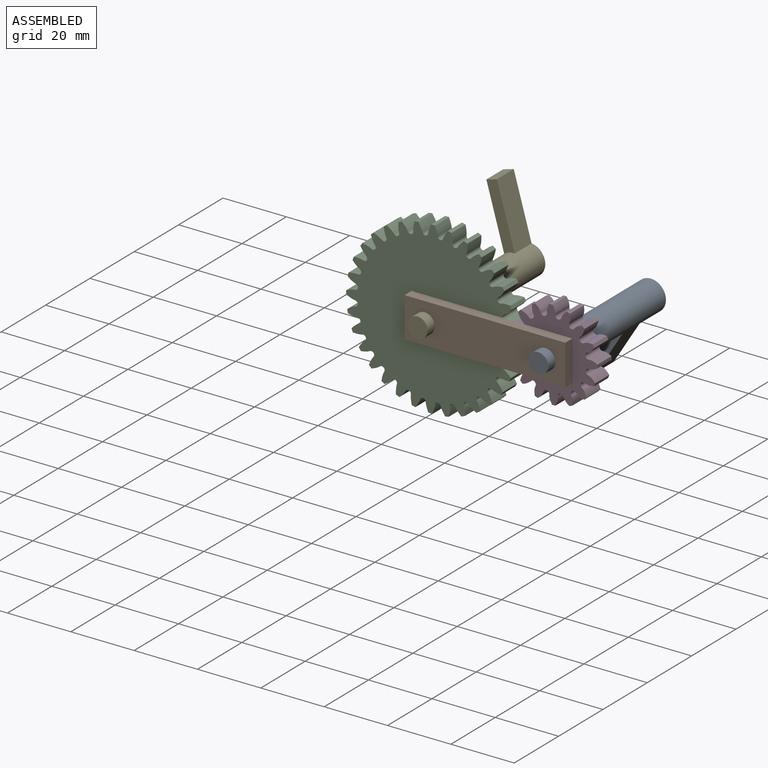
[diagram: assembled view]
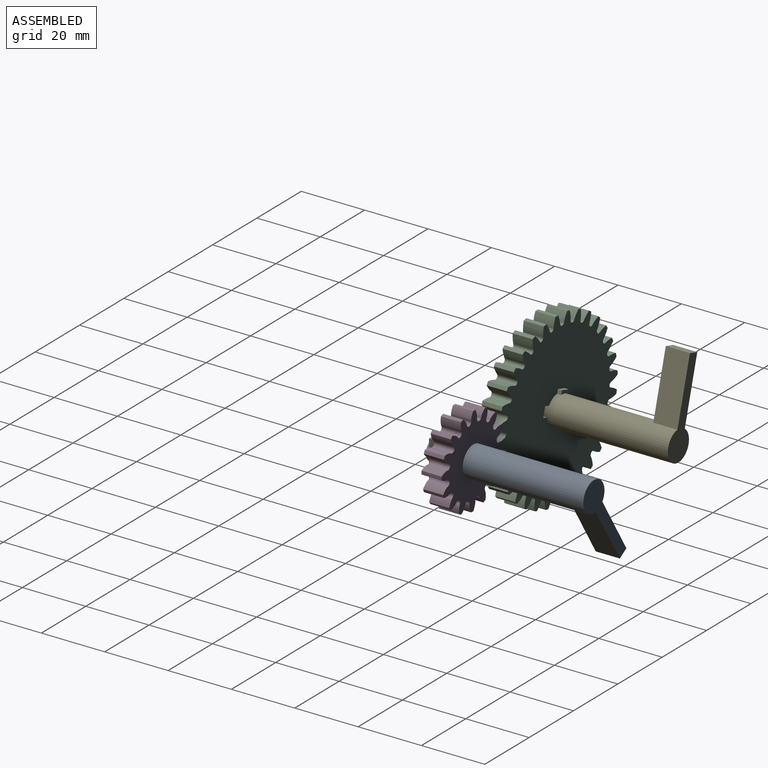
[diagram: assembled view, second angle]
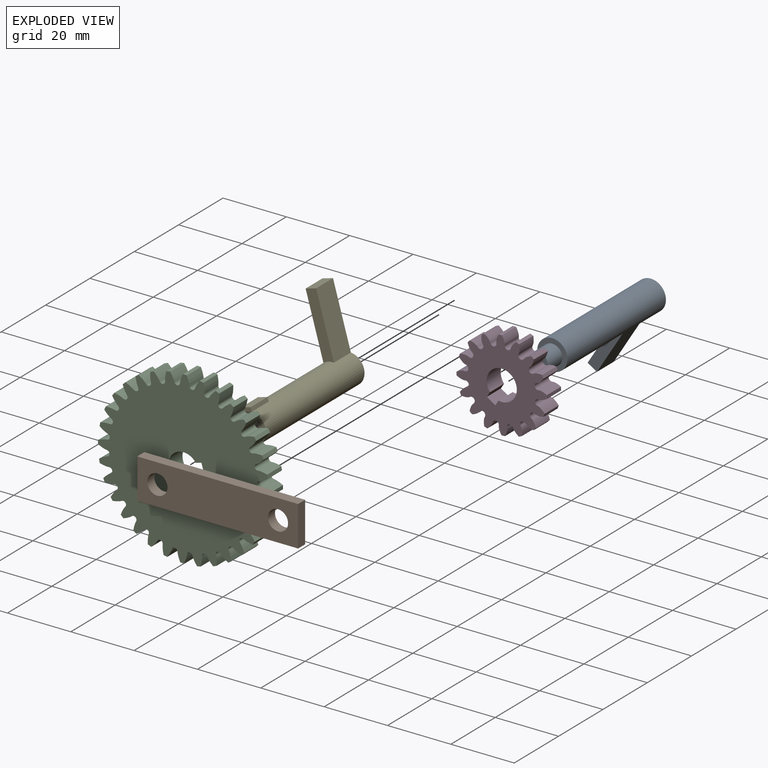
[diagram: exploded view]
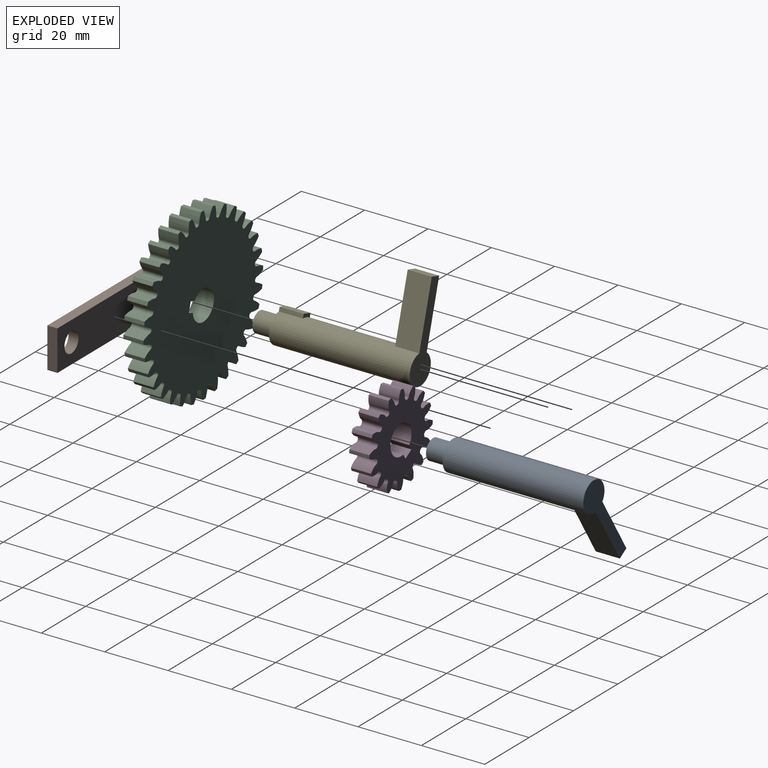
[diagram: exploded view, second angle]
ASSEMBLY  parts=5 mates=4
PART A: 13 faces, bbox 50.8x9.5x29.7 mm
  f0: plane 6.35x6.35mm, normal (-1,0,0), area 31.7mm2, adj f4
  f1: plane 29.7x9.53mm, normal (1,0,0), area 141.3mm2, adj f2,f9,f10,f11
  f2: cylinder r=4.76mm len=44.45mm, axis (-1,0,0), area 1278.5mm2, adj f1,f3,f5,f6,f8,f9,f11,f12
  f3: plane 10.52x9.53mm, normal (-1,0,0), area 43mm2, adj f2,f4,f5,f6,f7
  f4: cylinder r=3.17mm len=6.35mm, axis (-1,0,0), area 126.7mm2, adj f0,f3
  f5: plane 7.62x1.27mm, normal (0,-1,0), area 9.7mm2, adj f2,f3,f7,f8
  f6: plane 7.62x1.27mm, normal (0,1,0), area 9.7mm2, adj f2,f3,f7,f8
  f7: plane 7.62x3.18mm, normal (0,0,-1), area 24.2mm2, adj f3,f5,f6,f8
  f8: plane 3.18x1.27mm, normal (1,0,0), area 3.5mm2, adj f2,f5,f6,f7
  f9: plane 20.5x7.62mm, normal (0,-1,0), area 156.2mm2, adj f1,f2,f10,f12
  f10: plane 7.62x3.45mm, normal (0,0,-1), area 26.3mm2, adj f1,f9,f11,f12
  f11: plane 20.5x7.62mm, normal (0,1,0), area 156.2mm2, adj f1,f2,f10,f12
  f12: plane 20.5x3.45mm, normal (-1,0,0), area 70mm2, adj f2,f9,f10,f11
PART B: 8 faces, bbox 50.8x3.2x12.7 mm
  f0: plane 50.8x3.18mm, normal (0,0,1), area 161.3mm2, adj f1,f5,f6,f7
  f1: plane 12.7x3.18mm, normal (-1,0,0), area 40.3mm2, adj f0,f2,f6,f7
  f2: plane 50.8x3.18mm, normal (0,0,-1), area 161.3mm2, adj f1,f5,f6,f7
  f3: cylinder r=3.17mm len=6.35mm, axis (0,1,0), area 63.3mm2, adj f6,f7
  f4: cylinder r=3.17mm len=6.35mm, axis (0,1,0), area 63.3mm2, adj f6,f7
  f5: plane 12.7x3.18mm, normal (1,0,0), area 40.3mm2, adj f0,f2,f6,f7
  f6: plane 50.8x12.7mm, normal (0,-1,0), area 581.8mm2, adj f0,f1,f2,f3,f4,f5
  f7: plane 50.8x12.7mm, normal (0,1,0), area 581.8mm2, adj f0,f1,f2,f3,f4,f5
PART C: 134 faces, bbox 53.8x6.4x53.8 mm
  f0: cylinder r=26.99mm len=6.35mm, axis (0,1,0), area 7.5mm2, adj f31,f32,f89,f132
  f1: cylinder r=26.99mm len=6.35mm, axis (0,1,0), area 7.5mm2, adj f31,f32,f129,f131
  f2: cylinder r=26.99mm len=6.35mm, axis (0,1,0), area 7.5mm2, adj f31,f32,f122,f126
  f3: cylinder r=26.99mm len=6.35mm, axis (0,1,0), area 7.5mm2, adj f31,f32,f123,f128
  f4: cylinder r=26.99mm len=6.35mm, axis (0,1,0), area 7.5mm2, adj f31,f32,f120,f125
  f5: cylinder r=26.99mm len=6.35mm, axis (0,1,0), area 7.5mm2, adj f31,f32,f117,f119
  f6: cylinder r=26.99mm len=6.35mm, axis (0,1,0), area 7.5mm2, adj f31,f32,f114,f116
  f7: cylinder r=26.99mm len=6.35mm, axis (0,1,0), area 7.5mm2, adj f31,f32,f65,f111
  f8: cylinder r=26.99mm len=6.35mm, axis (0,1,0), area 7.5mm2, adj f31,f32,f108,f110
  f9: cylinder r=26.99mm len=6.35mm, axis (0,1,0), area 7.5mm2, adj f31,f32,f101,f105
  f10: cylinder r=26.99mm len=6.35mm, axis (0,1,0), area 7.5mm2, adj f31,f32,f102,f107
  f11: cylinder r=26.99mm len=6.35mm, axis (0,1,0), area 7.5mm2, adj f31,f32,f99,f104
  f12: cylinder r=26.99mm len=6.35mm, axis (0,1,0), area 7.5mm2, adj f31,f32,f96,f98
  f13: cylinder r=26.99mm len=6.35mm, axis (0,1,0), area 7.5mm2, adj f31,f32,f93,f95
  f14: cylinder r=26.99mm len=6.35mm, axis (0,1,0), area 7.5mm2, adj f31,f32,f90,f92
  f15: cylinder r=26.99mm len=6.35mm, axis (0,1,0), area 7.5mm2, adj f31,f32,f41,f87
  f16: cylinder r=26.99mm len=6.35mm, axis (0,1,0), area 7.5mm2, adj f31,f32,f84,f86
  f17: cylinder r=26.99mm len=6.35mm, axis (0,1,0), area 7.5mm2, adj f31,f32,f77,f81
  f18: cylinder r=26.99mm len=6.35mm, axis (0,1,0), area 7.5mm2, adj f31,f32,f78,f83
  f19: cylinder r=26.99mm len=6.35mm, axis (0,1,0), area 7.5mm2, adj f31,f32,f75,f80
  f20: cylinder r=26.99mm len=6.35mm, axis (0,1,0), area 7.5mm2, adj f31,f32,f72,f74
  f21: cylinder r=26.99mm len=6.35mm, axis (0,1,0), area 7.5mm2, adj f31,f32,f69,f71
  f22: cylinder r=26.99mm len=6.35mm, axis (0,1,0), area 7.5mm2, adj f31,f32,f66,f68
  f23: cylinder r=26.99mm len=6.35mm, axis (0,1,0), area 7.5mm2, adj f31,f32,f38,f63
  f24: cylinder r=26.99mm len=6.35mm, axis (0,1,0), area 7.5mm2, adj f31,f32,f60,f62
  f25: cylinder r=26.99mm len=6.35mm, axis (0,1,0), area 7.5mm2, adj f31,f32,f53,f57
  f26: cylinder r=26.99mm len=6.35mm, axis (0,1,0), area 7.5mm2, adj f31,f32,f54,f59
  f27: cylinder r=26.99mm len=6.35mm, axis (0,1,0), area 7.5mm2, adj f31,f32,f51,f56
  f28: cylinder r=26.99mm len=6.35mm, axis (0,1,0), area 7.5mm2, adj f31,f32,f48,f50
  f29: cylinder r=26.99mm len=6.35mm, axis (0,1,0), area 7.5mm2, adj f31,f32,f45,f47
  f30: cylinder r=26.99mm len=6.35mm, axis (0,1,0), area 7.5mm2, adj f31,f32,f42,f44
  f31: plane 53.82x53.82mm, normal (0,-1,0), area 1933.7mm2, adj f0,f1,f2,f3,f4,f5,f6,f7
  f32: plane 53.82x53.82mm, normal (0,1,0), area 1933.7mm2, adj f0,f1,f2,f3,f4,f5,f6,f7
  f33: plane 6.35x1.86mm, normal (-1,0,0), area 11.8mm2, adj f31,f32,f34,f36
  f34: cylinder r=4.76mm len=9.53mm, axis (0,1,0), area 169.5mm2, adj f31,f32,f33,f35
  f35: plane 6.35x1.86mm, normal (1,0,0), area 11.8mm2, adj f31,f32,f34,f36
  f36: plane 6.35x3.18mm, normal (0,0,-1), area 20.2mm2, adj f31,f32,f33,f35
  f37: cylinder r=26.99mm len=6.35mm, axis (0,1,0), area 7.5mm2, adj f31,f32,f39,f113
  f38: extruded ~6.35x2.78mm, area 19.4mm2, adj f23,f31,f32,f40
  f39: extruded ~6.35x2.78mm, area 19.4mm2, adj f31,f32,f37,f40
  f40: cylinder r=0.87mm len=6.35mm, axis (0,1,0), area 15.3mm2, adj f31,f32,f38,f39
  f41: extruded ~6.35x2.78mm, area 19.4mm2, adj f15,f31,f32,f43
  f42: extruded ~6.35x2.78mm, area 19.4mm2, adj f30,f31,f32,f43
  f43: cylinder r=0.87mm len=6.35mm, axis (0,1,0), area 15.3mm2, adj f31,f32,f41,f42
  f44: extruded ~6.35x2.97mm, area 19.4mm2, adj f30,f31,f32,f46
  f45: extruded ~6.35x2.49mm, area 19.4mm2, adj f29,f31,f32,f46
  f46: cylinder r=0.87mm len=6.35mm, axis (0,1,0), area 15.3mm2, adj f31,f32,f44,f45
  f47: extruded ~6.35x3.03mm, area 19.4mm2, adj f29,f31,f32,f49
  f48: extruded ~6.35x2.18mm, area 19.4mm2, adj f28,f31,f32,f49
  f49: cylinder r=0.87mm len=6.35mm, axis (0,1,0), area 15.3mm2, adj f31,f32,f47,f48
  f50: extruded ~6.35x2.98mm, area 19.4mm2, adj f28,f31,f32,f52
  f51: extruded ~6.35x2.55mm, area 19.4mm2, adj f27,f31,f32,f52
  f52: cylinder r=0.87mm len=6.35mm, axis (0,1,0), area 15.3mm2, adj f31,f32,f50,f51
  f53: extruded ~6.35x2.55mm, area 19.4mm2, adj f25,f31,f32,f55
  f54: extruded ~6.35x2.98mm, area 19.4mm2, adj f26,f31,f32,f55
  f55: cylinder r=0.87mm len=6.35mm, axis (0,1,0), area 15.3mm2, adj f31,f32,f53,f54
  f56: extruded ~6.35x2.82mm, area 19.4mm2, adj f27,f31,f32,f58
  f57: extruded ~6.35x2.82mm, area 19.4mm2, adj f25,f31,f32,f58
  f58: cylinder r=0.87mm len=6.35mm, axis (0,1,0), area 15.3mm2, adj f31,f32,f56,f57
  f59: extruded ~6.35x2.18mm, area 19.4mm2, adj f26,f31,f32,f61
  f60: extruded ~6.35x3.03mm, area 19.4mm2, adj f24,f31,f32,f61
  f61: cylinder r=0.87mm len=6.35mm, axis (0,1,0), area 15.3mm2, adj f31,f32,f59,f60
  f62: extruded ~6.35x2.49mm, area 19.4mm2, adj f24,f31,f32,f64
  f63: extruded ~6.35x2.97mm, area 19.4mm2, adj f23,f31,f32,f64
  f64: cylinder r=0.87mm len=6.35mm, axis (0,1,0), area 15.3mm2, adj f31,f32,f62,f63
  f65: extruded ~6.35x2.78mm, area 19.4mm2, adj f7,f31,f32,f67
  f66: extruded ~6.35x2.78mm, area 19.4mm2, adj f22,f31,f32,f67
  f67: cylinder r=0.87mm len=6.35mm, axis (0,1,0), area 15.3mm2, adj f31,f32,f65,f66
  f68: extruded ~6.35x2.97mm, area 19.4mm2, adj f22,f31,f32,f70
  f69: extruded ~6.35x2.49mm, area 19.4mm2, adj f21,f31,f32,f70
  f70: cylinder r=0.87mm len=6.35mm, axis (0,1,0), area 15.3mm2, adj f31,f32,f68,f69
  f71: extruded ~6.35x3.03mm, area 19.4mm2, adj f21,f31,f32,f73
  f72: extruded ~6.35x2.18mm, area 19.4mm2, adj f20,f31,f32,f73
  f73: cylinder r=0.87mm len=6.35mm, axis (0,1,0), area 15.3mm2, adj f31,f32,f71,f72
  f74: extruded ~6.35x2.98mm, area 19.4mm2, adj f20,f31,f32,f76
  f75: extruded ~6.35x2.55mm, area 19.4mm2, adj f19,f31,f32,f76
  f76: cylinder r=0.87mm len=6.35mm, axis (0,1,0), area 15.3mm2, adj f31,f32,f74,f75
  f77: extruded ~6.35x2.55mm, area 19.4mm2, adj f17,f31,f32,f79
  f78: extruded ~6.35x2.98mm, area 19.4mm2, adj f18,f31,f32,f79
  f79: cylinder r=0.87mm len=6.35mm, axis (0,1,0), area 15.3mm2, adj f31,f32,f77,f78
  f80: extruded ~6.35x2.82mm, area 19.4mm2, adj f19,f31,f32,f82
  f81: extruded ~6.35x2.82mm, area 19.4mm2, adj f17,f31,f32,f82
  f82: cylinder r=0.87mm len=6.35mm, axis (0,1,0), area 15.3mm2, adj f31,f32,f80,f81
  f83: extruded ~6.35x2.18mm, area 19.4mm2, adj f18,f31,f32,f85
  f84: extruded ~6.35x3.03mm, area 19.4mm2, adj f16,f31,f32,f85
  f85: cylinder r=0.87mm len=6.35mm, axis (0,1,0), area 15.3mm2, adj f31,f32,f83,f84
  f86: extruded ~6.35x2.49mm, area 19.4mm2, adj f16,f31,f32,f88
  f87: extruded ~6.35x2.97mm, area 19.4mm2, adj f15,f31,f32,f88
  f88: cylinder r=0.87mm len=6.35mm, axis (0,1,0), area 15.3mm2, adj f31,f32,f86,f87
  f89: extruded ~6.35x2.78mm, area 19.4mm2, adj f0,f31,f32,f91
  f90: extruded ~6.35x2.78mm, area 19.4mm2, adj f14,f31,f32,f91
  f91: cylinder r=0.87mm len=6.35mm, axis (0,1,0), area 15.3mm2, adj f31,f32,f89,f90
  f92: extruded ~6.35x2.97mm, area 19.4mm2, adj f14,f31,f32,f94
  f93: extruded ~6.35x2.49mm, area 19.4mm2, adj f13,f31,f32,f94
  f94: cylinder r=0.87mm len=6.35mm, axis (0,1,0), area 15.3mm2, adj f31,f32,f92,f93
  f95: extruded ~6.35x3.03mm, area 19.4mm2, adj f13,f31,f32,f97
  f96: extruded ~6.35x2.18mm, area 19.4mm2, adj f12,f31,f32,f97
  f97: cylinder r=0.87mm len=6.35mm, axis (0,1,0), area 15.3mm2, adj f31,f32,f95,f96
  f98: extruded ~6.35x2.98mm, area 19.4mm2, adj f12,f31,f32,f100
  f99: extruded ~6.35x2.55mm, area 19.4mm2, adj f11,f31,f32,f100
  f100: cylinder r=0.87mm len=6.35mm, axis (0,1,0), area 15.3mm2, adj f31,f32,f98,f99
  f101: extruded ~6.35x2.55mm, area 19.4mm2, adj f9,f31,f32,f103
  f102: extruded ~6.35x2.98mm, area 19.4mm2, adj f10,f31,f32,f103
  f103: cylinder r=0.87mm len=6.35mm, axis (0,1,0), area 15.3mm2, adj f31,f32,f101,f102
  f104: extruded ~6.35x2.82mm, area 19.4mm2, adj f11,f31,f32,f106
  f105: extruded ~6.35x2.82mm, area 19.4mm2, adj f9,f31,f32,f106
  f106: cylinder r=0.87mm len=6.35mm, axis (0,1,0), area 15.3mm2, adj f31,f32,f104,f105
  f107: extruded ~6.35x2.18mm, area 19.4mm2, adj f10,f31,f32,f109
  f108: extruded ~6.35x3.03mm, area 19.4mm2, adj f8,f31,f32,f109
  f109: cylinder r=0.87mm len=6.35mm, axis (0,1,0), area 15.3mm2, adj f31,f32,f107,f108
  f110: extruded ~6.35x2.49mm, area 19.4mm2, adj f8,f31,f32,f112
  f111: extruded ~6.35x2.97mm, area 19.4mm2, adj f7,f31,f32,f112
  f112: cylinder r=0.87mm len=6.35mm, axis (0,1,0), area 15.3mm2, adj f31,f32,f110,f111
  f113: extruded ~6.35x2.97mm, area 19.4mm2, adj f31,f32,f37,f115
  f114: extruded ~6.35x2.49mm, area 19.4mm2, adj f6,f31,f32,f115
  f115: cylinder r=0.87mm len=6.35mm, axis (0,1,0), area 15.3mm2, adj f31,f32,f113,f114
  f116: extruded ~6.35x3.03mm, area 19.4mm2, adj f6,f31,f32,f118
  f117: extruded ~6.35x2.18mm, area 19.4mm2, adj f5,f31,f32,f118
  f118: cylinder r=0.87mm len=6.35mm, axis (0,1,0), area 15.3mm2, adj f31,f32,f116,f117
  f119: extruded ~6.35x2.98mm, area 19.4mm2, adj f5,f31,f32,f121
  f120: extruded ~6.35x2.55mm, area 19.4mm2, adj f4,f31,f32,f121
  f121: cylinder r=0.87mm len=6.35mm, axis (0,1,0), area 15.3mm2, adj f31,f32,f119,f120
  f122: extruded ~6.35x2.55mm, area 19.4mm2, adj f2,f31,f32,f124
  f123: extruded ~6.35x2.98mm, area 19.4mm2, adj f3,f31,f32,f124
  f124: cylinder r=0.87mm len=6.35mm, axis (0,1,0), area 15.3mm2, adj f31,f32,f122,f123
  f125: extruded ~6.35x2.82mm, area 19.4mm2, adj f4,f31,f32,f127
  f126: extruded ~6.35x2.82mm, area 19.4mm2, adj f2,f31,f32,f127
  f127: cylinder r=0.87mm len=6.35mm, axis (0,1,0), area 15.3mm2, adj f31,f32,f125,f126
  f128: extruded ~6.35x2.18mm, area 19.4mm2, adj f3,f31,f32,f130
  f129: extruded ~6.35x3.03mm, area 19.4mm2, adj f1,f31,f32,f130
  f130: cylinder r=0.87mm len=6.35mm, axis (0,1,0), area 15.3mm2, adj f31,f32,f128,f129
  f131: extruded ~6.35x2.49mm, area 19.4mm2, adj f1,f31,f32,f133
  f132: extruded ~6.35x2.97mm, area 19.4mm2, adj f0,f31,f32,f133
  f133: cylinder r=0.87mm len=6.35mm, axis (0,1,0), area 15.3mm2, adj f31,f32,f131,f132
PART D: 70 faces, bbox 28.2x6.4x28.2 mm
  f0: cylinder r=14.29mm len=6.35mm, axis (0,1,0), area 6.7mm2, adj f15,f16,f64,f68
  f1: cylinder r=14.29mm len=6.35mm, axis (0,1,0), area 6.7mm2, adj f15,f16,f49,f65
  f2: cylinder r=14.29mm len=6.35mm, axis (0,1,0), area 6.7mm2, adj f15,f16,f62,f67
  f3: cylinder r=14.29mm len=6.35mm, axis (0,1,0), area 6.7mm2, adj f15,f16,f55,f59
  f4: cylinder r=14.29mm len=6.35mm, axis (0,1,0), area 6.7mm2, adj f15,f16,f37,f56
  f5: cylinder r=14.29mm len=6.35mm, axis (0,1,0), area 6.7mm2, adj f15,f16,f53,f58
  f6: cylinder r=14.29mm len=6.35mm, axis (0,1,0), area 6.7mm2, adj f15,f16,f50,f52
  f7: cylinder r=14.29mm len=6.35mm, axis (0,1,0), area 6.7mm2, adj f15,f16,f43,f47
  f8: cylinder r=14.29mm len=6.35mm, axis (0,1,0), area 6.7mm2, adj f15,f16,f25,f44
  f9: cylinder r=14.29mm len=6.35mm, axis (0,1,0), area 6.7mm2, adj f15,f16,f41,f46
  f10: cylinder r=14.29mm len=6.35mm, axis (0,1,0), area 6.7mm2, adj f15,f16,f38,f40
  f11: cylinder r=14.29mm len=6.35mm, axis (0,1,0), area 6.7mm2, adj f15,f16,f31,f35
  f12: cylinder r=14.29mm len=6.35mm, axis (0,1,0), area 6.7mm2, adj f15,f16,f22,f32
  f13: cylinder r=14.29mm len=6.35mm, axis (0,1,0), area 6.7mm2, adj f15,f16,f29,f34
  f14: cylinder r=14.29mm len=6.35mm, axis (0,1,0), area 6.7mm2, adj f15,f16,f26,f28
  f15: plane 28.23x28.23mm, normal (0,-1,0), area 419.6mm2, adj f0,f1,f2,f3,f4,f5,f6,f7
  f16: plane 28.23x28.23mm, normal (0,1,0), area 419.6mm2, adj f0,f1,f2,f3,f4,f5,f6,f7
  f17: plane 6.35x1.86mm, normal (-1,0,0), area 11.8mm2, adj f15,f16,f18,f20
  f18: cylinder r=4.76mm len=9.53mm, axis (0,1,0), area 169.5mm2, adj f15,f16,f17,f19
  f19: plane 6.35x1.86mm, normal (1,0,0), area 11.8mm2, adj f15,f16,f18,f20
  f20: plane 6.35x3.18mm, normal (0,0,-1), area 20.2mm2, adj f15,f16,f17,f19
  f21: cylinder r=14.29mm len=6.35mm, axis (0,1,0), area 6.7mm2, adj f15,f16,f23,f61
  f22: extruded ~6.35x2.5mm, area 18.2mm2, adj f12,f15,f16,f24
  f23: extruded ~6.35x2.5mm, area 18.2mm2, adj f15,f16,f21,f24
  f24: cylinder r=0.97mm len=6.35mm, axis (0,1,0), area 18.3mm2, adj f15,f16,f22,f23
  f25: extruded ~6.35x2.5mm, area 18.2mm2, adj f8,f15,f16,f27
  f26: extruded ~6.35x2.5mm, area 18.2mm2, adj f14,f15,f16,f27
  f27: cylinder r=0.97mm len=6.35mm, axis (0,1,0), area 18.3mm2, adj f15,f16,f25,f26
  f28: extruded ~6.35x2.81mm, area 18.2mm2, adj f14,f15,f16,f30
  f29: extruded ~6.35x2.16mm, area 18.2mm2, adj f13,f15,f16,f30
  f30: cylinder r=0.97mm len=6.35mm, axis (0,1,0), area 18.3mm2, adj f15,f16,f28,f29
  f31: extruded ~6.35x2.16mm, area 18.2mm2, adj f11,f15,f16,f33
  f32: extruded ~6.35x2.81mm, area 18.2mm2, adj f12,f15,f16,f33
  f33: cylinder r=0.97mm len=6.35mm, axis (0,1,0), area 18.3mm2, adj f15,f16,f31,f32
  f34: extruded ~6.35x2.69mm, area 18.2mm2, adj f13,f15,f16,f36
  f35: extruded ~6.35x2.69mm, area 18.2mm2, adj f11,f15,f16,f36
  f36: cylinder r=0.97mm len=6.35mm, axis (0,1,0), area 18.3mm2, adj f15,f16,f34,f35
  f37: extruded ~6.35x2.5mm, area 18.2mm2, adj f4,f15,f16,f39
  f38: extruded ~6.35x2.5mm, area 18.2mm2, adj f10,f15,f16,f39
  f39: cylinder r=0.97mm len=6.35mm, axis (0,1,0), area 18.3mm2, adj f15,f16,f37,f38
  f40: extruded ~6.35x2.81mm, area 18.2mm2, adj f10,f15,f16,f42
  f41: extruded ~6.35x2.16mm, area 18.2mm2, adj f9,f15,f16,f42
  f42: cylinder r=0.97mm len=6.35mm, axis (0,1,0), area 18.3mm2, adj f15,f16,f40,f41
  f43: extruded ~6.35x2.16mm, area 18.2mm2, adj f7,f15,f16,f45
  f44: extruded ~6.35x2.81mm, area 18.2mm2, adj f8,f15,f16,f45
  f45: cylinder r=0.97mm len=6.35mm, axis (0,1,0), area 18.3mm2, adj f15,f16,f43,f44
  f46: extruded ~6.35x2.69mm, area 18.2mm2, adj f9,f15,f16,f48
  f47: extruded ~6.35x2.69mm, area 18.2mm2, adj f7,f15,f16,f48
  f48: cylinder r=0.97mm len=6.35mm, axis (0,1,0), area 18.3mm2, adj f15,f16,f46,f47
  f49: extruded ~6.35x2.5mm, area 18.2mm2, adj f1,f15,f16,f51
  f50: extruded ~6.35x2.5mm, area 18.2mm2, adj f6,f15,f16,f51
  f51: cylinder r=0.97mm len=6.35mm, axis (0,1,0), area 18.3mm2, adj f15,f16,f49,f50
  f52: extruded ~6.35x2.81mm, area 18.2mm2, adj f6,f15,f16,f54
  f53: extruded ~6.35x2.16mm, area 18.2mm2, adj f5,f15,f16,f54
  f54: cylinder r=0.97mm len=6.35mm, axis (0,1,0), area 18.3mm2, adj f15,f16,f52,f53
  f55: extruded ~6.35x2.16mm, area 18.2mm2, adj f3,f15,f16,f57
  f56: extruded ~6.35x2.81mm, area 18.2mm2, adj f4,f15,f16,f57
  f57: cylinder r=0.97mm len=6.35mm, axis (0,1,0), area 18.3mm2, adj f15,f16,f55,f56
  f58: extruded ~6.35x2.69mm, area 18.2mm2, adj f5,f15,f16,f60
  f59: extruded ~6.35x2.69mm, area 18.2mm2, adj f3,f15,f16,f60
  f60: cylinder r=0.97mm len=6.35mm, axis (0,1,0), area 18.3mm2, adj f15,f16,f58,f59
  f61: extruded ~6.35x2.81mm, area 18.2mm2, adj f15,f16,f21,f63
  f62: extruded ~6.35x2.16mm, area 18.2mm2, adj f2,f15,f16,f63
  f63: cylinder r=0.97mm len=6.35mm, axis (0,1,0), area 18.3mm2, adj f15,f16,f61,f62
  f64: extruded ~6.35x2.16mm, area 18.2mm2, adj f0,f15,f16,f66
  f65: extruded ~6.35x2.81mm, area 18.2mm2, adj f1,f15,f16,f66
  f66: cylinder r=0.97mm len=6.35mm, axis (0,1,0), area 18.3mm2, adj f15,f16,f64,f65
  f67: extruded ~6.35x2.69mm, area 18.2mm2, adj f2,f15,f16,f69
  f68: extruded ~6.35x2.69mm, area 18.2mm2, adj f0,f15,f16,f69
  f69: cylinder r=0.97mm len=6.35mm, axis (0,1,0), area 18.3mm2, adj f15,f16,f67,f68
PART E: same geometry as A
PLACE A rot(axis=(0.26,0.26,0.93),94.3deg) t=(0,-6.35,0)mm
PLACE B t=(-38.1,0,0)mm
PLACE C rot(axis=(0,1,0),74.1deg) t=(-38.1,6.35,0)mm
PLACE D rot(axis=(0,-1,0),148.1deg) t=(0,6.35,0)mm
PLACE E rot(axis=(0.7,0.7,0.1),168.7deg) t=(-38.1,-6.35,0)mm
MATE fastened C.f0 <-> E.f2  axis (0,-1,0) through (-38.1,0,0)mm
MATE fastened A.f2 <-> D.f0  axis (0,-1,0) through (0,0,0)mm
MATE revolute B.f3 <-> C.f0  axis (0,1,0) through (-38.1,0,0)mm
MATE planar B.f4 <-> A.f2  axis (0,1,0) through (0,0,0)mm
